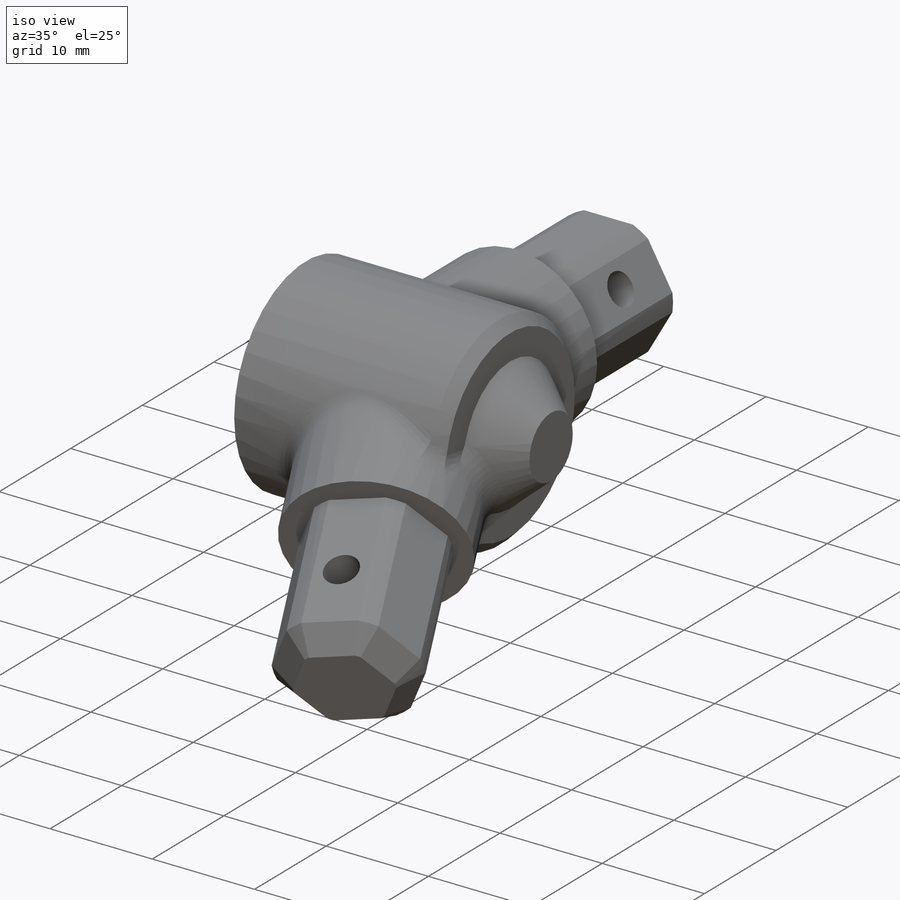
[diagram: iso view]
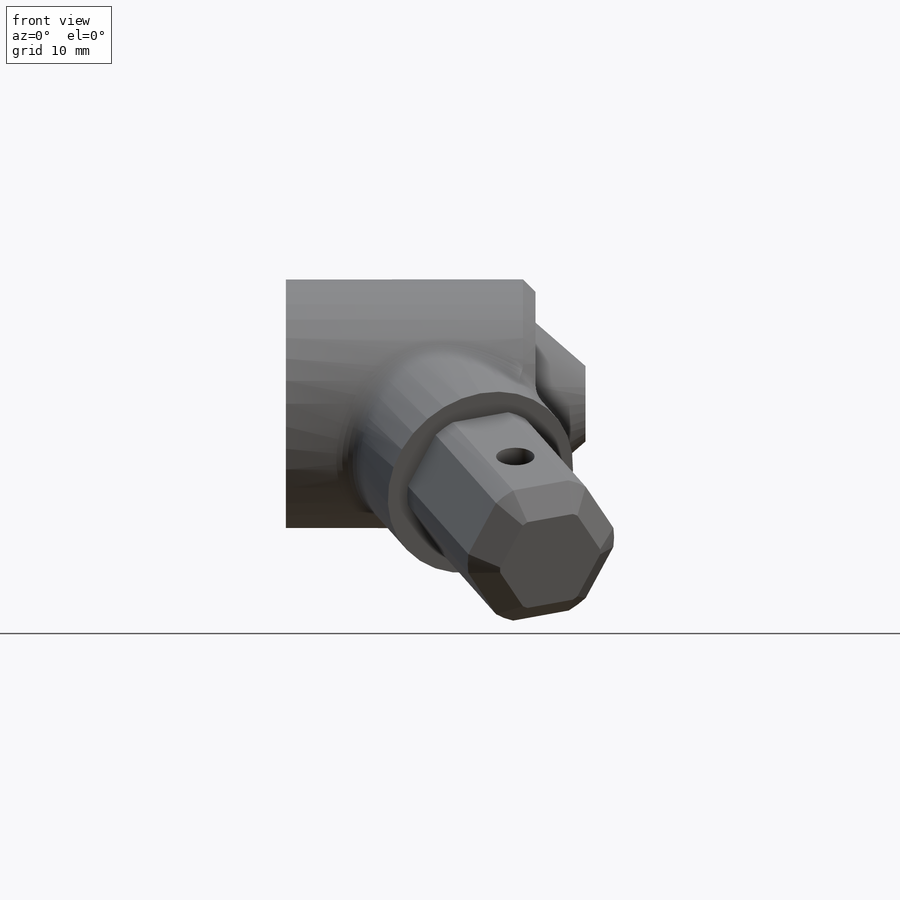
[diagram: front view]
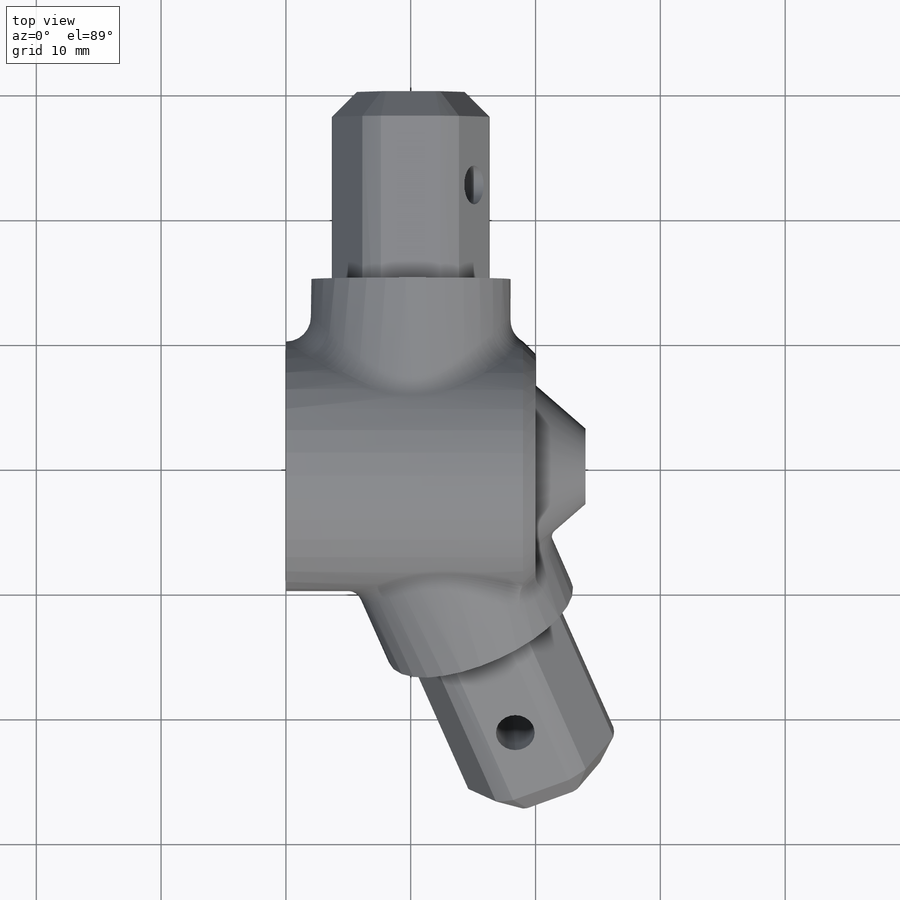
[diagram: top view]
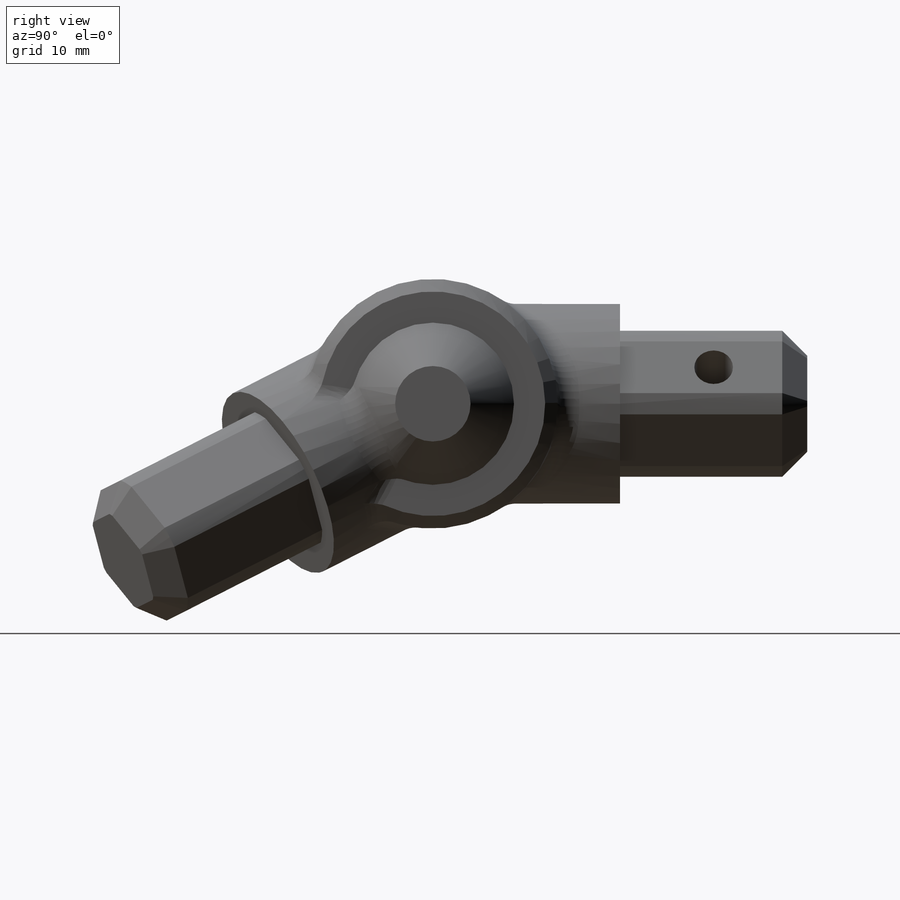
[diagram: right view]
SOLIDWORKS PART (.sldprt)
format: sldprt  version: not decoded by parser v0  size: 445,440 bytes
history: native  units: mm
features: sketch x13, extrude x7, chamfer x4, cut_extrude x3, material x1, plane x1, fillet x1 (+13 scaffold rows collapsed)
feature tree (43):
  scaffold x13  (default folders/planes/origin — collapsed)
  material  "Material <not specified>"
  sketch  "Sketch1"  dims[D1=20.0mm]
  extrude  "Boss-Extrude1"  Depth=20mm
  sketch  "3DSketch4"  dims[c1.D1=20.0mm c2.D1=~18.532252mm c3.D1=~17.15089mm c4.D1=~18.979811mm]
  plane  "Plane4"
  sketch  "Sketch26"  dims[D1=16.0mm]
  extrude  "Boss-Extrude14"  Depth=15mm
  sketch  "Sketch27"  dims[D1=16.0mm]
  extrude  "Boss-Extrude15"  Depth=15mm
  sketch  "Sketch28"  dims[D1=12.64mm D2=11.7mm]
  extrude  "Boss-Extrude16"  Depth=15mm
  sketch  "Sketch29"  dims[D1=12.64mm D2=11.7mm]
  extrude  "Boss-Extrude17"  Depth=15mm
  sketch  "Sketch8"  dims[D1=~15.079383mm]
  extrude  "Boss-Extrude4"  Depth=15mm
  chamfer  "Chamfer2"  Distance=1mm Angle=45deg
  sketch  "Sketch12"  dims[D1=13.0mm]
  extrude  "Boss-Extrude6"  Depth=4mm
  fillet  "Fillet1"  Radius=2mm
  chamfer  "Chamfer3"  Distance=2mm Angle=45deg
  sketch  "Axis2"
  sketch  "Axis3"
  sketch  "Sketch30"  dims[D1=3.1mm D2=7.5mm]
  cut_extrude  "Cut-Extrude1"  [1 undecoded]
  sketch  "Sketch31"  dims[D1=3.1mm D2=7.5mm]
  cut_extrude  "Cut-Extrude2"  [1 undecoded]
  sketch  "Sketch32"  dims[D1=6.0mm]
  cut_extrude  "Cut-Extrude3"  Depth=4mm
  chamfer  "Chamfer4"  Distance=1mm Angle=20deg
  chamfer  "Chamfer5"  Distance=1mm Angle=45deg
decode coverage: 24 of 28 modeling features carry decoded parameters
note: ~ marks probable driven/reference dimensions
note: 2 parameter values undecoded
note: suppression state not decoded; provenance and decode notes live in map.json
